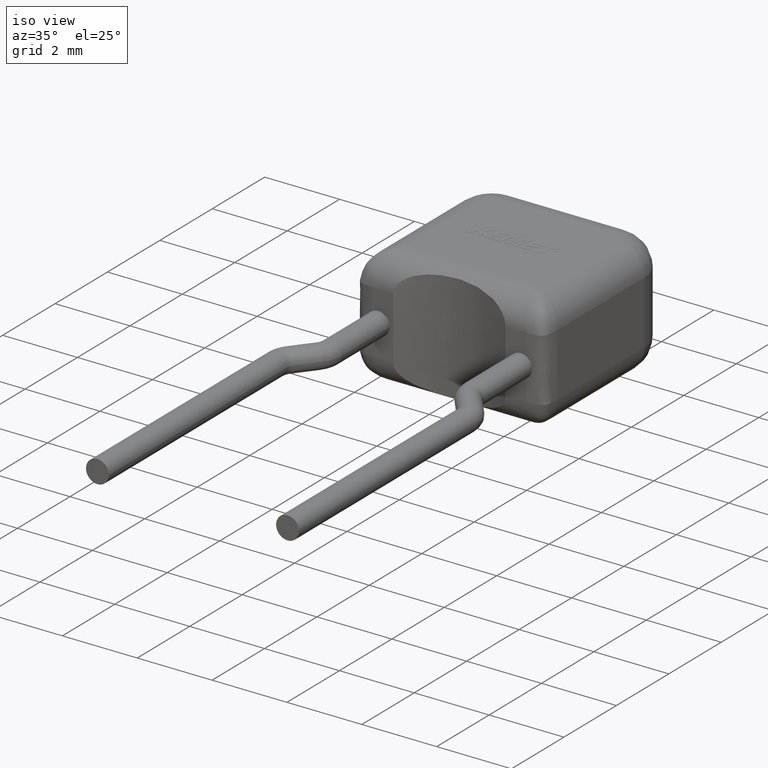
[diagram: clean part render]
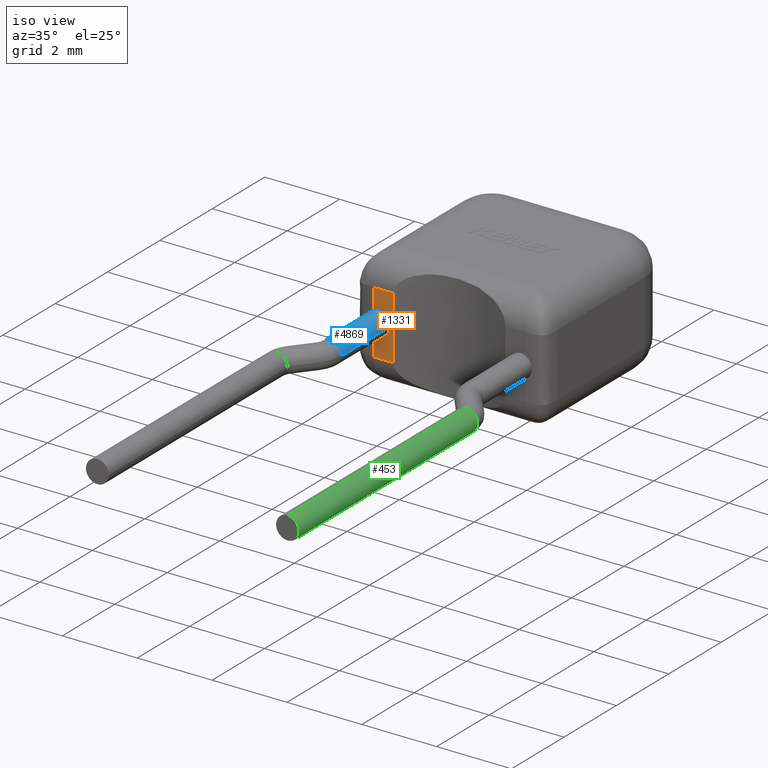
[diagram: same view with three faces highlighted in distinct colors, each labeled with its STEP entity id]
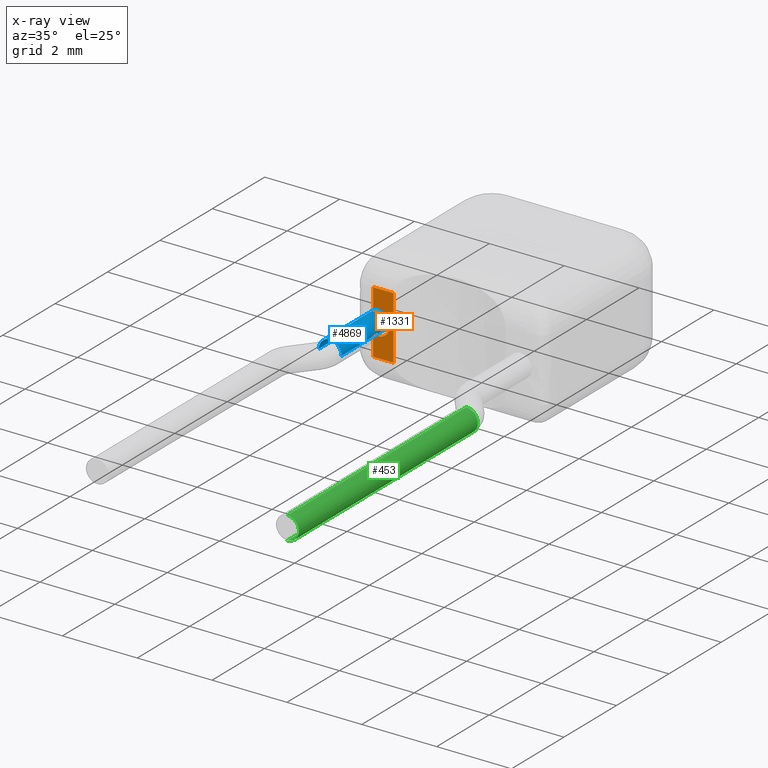
[diagram: x-ray of the same camera — body ghosted, the three highlighted faces saturated]
A machine part, iso view with three faces highlighted in distinct colors.
The next image is the same camera in x-ray (body ghosted, the three faces saturated) — at least one of them is partly hidden behind the body in this view.
Their STEP definitions:

[orange] entity #1331 — the highlighted planar face has unit normal (0, 1, 0).
#317 = DIRECTION ( 'NONE',  ( 0.0000000000000000000, 1.000000000000000000, 0.0000000000000000000 ) ) ;
#380 = CARTESIAN_POINT ( 'NONE',  ( 0.4999999999999995600, 0.0000000000000000000, 1.127669408917638700 ) ) ;
#404 = CARTESIAN_POINT ( 'NONE',  ( 0.4999999999999995600, 0.0000000000000000000, 0.9388347044588225600 ) ) ;
#445 = CARTESIAN_POINT ( 'NONE',  ( 0.4999999999999997800, 0.0000000000000000000, 1.863495886623546900 ) ) ;
#641 = CARTESIAN_POINT ( 'NONE',  ( 0.4999999999999996700, 0.0000000000000000000, 2.429999999999999700 ) ) ;
#977 = VERTEX_POINT ( 'NONE', #1622 ) ;
#1041 = EDGE_CURVE ( 'NONE', #6606, #2048, #3404, .T. ) ;
#1198 = CARTESIAN_POINT ( 'NONE',  ( 0.4999999999999995600, 0.0000000000000000000, 2.241165279087709000 ) ) ;
#1232 = CARTESIAN_POINT ( 'NONE',  ( 4.580000000000001000, 0.0000000000000000000, 0.7500000000000002200 ) ) ;
#1284 = AXIS2_PLACEMENT_3D ( 'NONE', #2543, #5117, #6704 ) ;
#1331 = ADVANCED_FACE ( 'NONE', ( #2004 ), #3501, .F. ) ;
#1372 = CARTESIAN_POINT ( 'NONE',  ( 0.4999999999999996700, 0.0000000000000000000, 2.429999999999999700 ) ) ;
#1461 = CARTESIAN_POINT ( 'NONE',  ( 1.040000000000000500, 0.0000000000000000000, 2.429999999999999700 ) ) ;
#1473 = CARTESIAN_POINT ( 'NONE',  ( 0.4999999999999996700, 0.0000000000000000000, 1.316504113376454600 ) ) ;
#1496 = EDGE_CURVE ( 'NONE', #4760, #3561, #3744, .T. ) ;
#1506 = VECTOR ( 'NONE', #6240, 1000.000000000000000 ) ;
#1622 = CARTESIAN_POINT ( 'NONE',  ( 1.040000000000000500, 0.0000000000000000000, 0.7500000000000006700 ) ) ;
#1713 = CARTESIAN_POINT ( 'NONE',  ( 0.9400000000000001700, 0.0000000000000000000, 1.590000000000000300 ) ) ;
#1718 = DIRECTION ( 'NONE',  ( -1.000000000000000000, 0.0000000000000000000, -0.0000000000000000000 ) ) ;
#1793 = AXIS2_PLACEMENT_3D ( 'NONE', #2469, #317, #6134 ) ;
#2004 = FACE_OUTER_BOUND ( 'NONE', #2209, .T. ) ;
#2048 = VERTEX_POINT ( 'NONE', #1372 ) ;
#2207 = DIRECTION ( 'NONE',  ( 0.0000000000000000000, 0.0000000000000000000, -1.000000000000000000 ) ) ;
#2209 = EDGE_LOOP ( 'NONE', ( #4960, #6271, #4066, #2647, #4368, #2940, #4632 ) ) ;
#2364 = DIRECTION ( 'NONE',  ( 1.000000000000000000, -0.0000000000000000000, 0.0000000000000000000 ) ) ;
#2469 = CARTESIAN_POINT ( 'NONE',  ( 0.0000000000000000000, 0.0000000000000000000, 3.180000000000000200 ) ) ;
#2543 = CARTESIAN_POINT ( 'NONE',  ( 0.6350000000000002300, 0.0000000000000000000, 1.590000000000000300 ) ) ;
#2578 = LINE ( 'NONE', #5215, #1506 ) ;
#2647 = ORIENTED_EDGE ( 'NONE', *, *, #6462, .F. ) ;
#2940 = ORIENTED_EDGE ( 'NONE', *, *, #1496, .T. ) ;
#3260 = CARTESIAN_POINT ( 'NONE',  ( 0.4999999999999997800, 0.0000000000000000000, 0.7500000000000065500 ) ) ;
#3311 = CARTESIAN_POINT ( 'NONE',  ( 0.6350000000000002300, 0.0000000000000000000, 1.590000000000000300 ) ) ;
#3404 = LINE ( 'NONE', #5769, #6388 ) ;
#3480 = VERTEX_POINT ( 'NONE', #445 ) ;
#3501 = PLANE ( 'NONE',  #1793 ) ;
#3561 = VERTEX_POINT ( 'NONE', #3260 ) ;
#3744 = B_SPLINE_CURVE_WITH_KNOTS ( 'NONE', 3,
 ( #1473, #380, #404, #5238 ),
 .UNSPECIFIED., .F., .F.,
 ( 4, 4 ),
 ( 0.5860049957935679100, 0.7641509433962243600 ),
 .UNSPECIFIED. ) ;
#3817 = VECTOR ( 'NONE', #2364, 1000.000000000000000 ) ;
#3917 = B_SPLINE_CURVE_WITH_KNOTS ( 'NONE', 3,
 ( #641, #1198, #4435, #6487 ),
 .UNSPECIFIED., .F., .F.,
 ( 4, 4 ),
 ( 0.2358490566037738700, 0.4139950197285764400 ),
 .UNSPECIFIED. ) ;
#4066 = ORIENTED_EDGE ( 'NONE', *, *, #5841, .T. ) ;
#4183 = CIRCLE ( 'NONE', #1284, 0.3049999999999999400 ) ;
#4368 = ORIENTED_EDGE ( 'NONE', *, *, #4683, .F. ) ;
#4435 = CARTESIAN_POINT ( 'NONE',  ( 0.4999999999999995600, 0.0000000000000000000, 2.052330558175418300 ) ) ;
#4500 = EDGE_CURVE ( 'NONE', #6606, #977, #2578, .T. ) ;
#4632 = ORIENTED_EDGE ( 'NONE', *, *, #4810, .T. ) ;
#4683 = EDGE_CURVE ( 'NONE', #4760, #5906, #4808, .T. ) ;
#4760 = VERTEX_POINT ( 'NONE', #6073 ) ;
#4808 = CIRCLE ( 'NONE', #5340, 0.3049999999999999400 ) ;
#4810 = EDGE_CURVE ( 'NONE', #3561, #977, #6647, .T. ) ;
#4841 = DIRECTION ( 'NONE',  ( 0.0000000000000000000, -1.000000000000000000, 0.0000000000000000000 ) ) ;
#4960 = ORIENTED_EDGE ( 'NONE', *, *, #4500, .F. ) ;
#5117 = DIRECTION ( 'NONE',  ( 0.0000000000000000000, -1.000000000000000000, 0.0000000000000000000 ) ) ;
#5215 = CARTESIAN_POINT ( 'NONE',  ( 1.040000000000000500, 0.0000000000000000000, 10.00000000000000000 ) ) ;
#5238 = CARTESIAN_POINT ( 'NONE',  ( 0.4999999999999997800, 0.0000000000000000000, 0.7500000000000065500 ) ) ;
#5340 = AXIS2_PLACEMENT_3D ( 'NONE', #3311, #4841, #2207 ) ;
#5769 = CARTESIAN_POINT ( 'NONE',  ( 0.0000000000000000000, 0.0000000000000000000, 2.429999999999999700 ) ) ;
#5841 = EDGE_CURVE ( 'NONE', #2048, #3480, #3917, .T. ) ;
#5906 = VERTEX_POINT ( 'NONE', #1713 ) ;
#6073 = CARTESIAN_POINT ( 'NONE',  ( 0.4999999999999996700, 0.0000000000000000000, 1.316504113376454600 ) ) ;
#6134 = DIRECTION ( 'NONE',  ( 0.0000000000000000000, -0.0000000000000000000, 1.000000000000000000 ) ) ;
#6240 = DIRECTION ( 'NONE',  ( 0.0000000000000000000, 0.0000000000000000000, -1.000000000000000000 ) ) ;
#6271 = ORIENTED_EDGE ( 'NONE', *, *, #1041, .T. ) ;
#6388 = VECTOR ( 'NONE', #1718, 1000.000000000000000 ) ;
#6462 = EDGE_CURVE ( 'NONE', #5906, #3480, #4183, .T. ) ;
#6487 = CARTESIAN_POINT ( 'NONE',  ( 0.4999999999999997800, 0.0000000000000000000, 1.863495886623546900 ) ) ;
#6606 = VERTEX_POINT ( 'NONE', #1461 ) ;
#6647 = LINE ( 'NONE', #1232, #3817 ) ;
#6704 = DIRECTION ( 'NONE',  ( 0.0000000000000000000, 0.0000000000000000000, -1.000000000000000000 ) ) ;

[blue] entity #4869 — the highlighted cylindrical surface (edge-blend (fillet) strip) has radius 0.305 mm, axis along (-0, 1, -0).
#5 = AXIS2_PLACEMENT_3D ( 'NONE', #2274, #6517, #3350 ) ;
#104 = VECTOR ( 'NONE', #1334, 1000.000000000000000 ) ;
#445 = CARTESIAN_POINT ( 'NONE',  ( 0.4999999999999997800, 0.0000000000000000000, 1.863495886623546900 ) ) ;
#563 = CARTESIAN_POINT ( 'NONE',  ( 0.9400000000000005000, -1.834921995940549200, 1.590000000000000300 ) ) ;
#680 = AXIS2_PLACEMENT_3D ( 'NONE', #2167, #2099, #6829 ) ;
#855 = CARTESIAN_POINT ( 'NONE',  ( 0.6350000000000005600, -1.834921995940549200, 1.590000000000000300 ) ) ;
#1030 = EDGE_LOOP ( 'NONE', ( #2737, #1802, #1050, #4043, #5185 ) ) ;
#1050 = ORIENTED_EDGE ( 'NONE', *, *, #6462, .T. ) ;
#1284 = AXIS2_PLACEMENT_3D ( 'NONE', #2543, #5117, #6704 ) ;
#1334 = DIRECTION ( 'NONE',  ( -1.772612963740337700E-016, 1.000000000000000000, -0.0000000000000000000 ) ) ;
#1713 = CARTESIAN_POINT ( 'NONE',  ( 0.9400000000000001700, 0.0000000000000000000, 1.590000000000000300 ) ) ;
#1802 = ORIENTED_EDGE ( 'NONE', *, *, #6195, .T. ) ;
#1969 = CIRCLE ( 'NONE', #680, 0.3049999999999999400 ) ;
#2009 = FACE_OUTER_BOUND ( 'NONE', #1030, .T. ) ;
#2099 = DIRECTION ( 'NONE',  ( 0.0000000000000000000, -1.000000000000000000, 0.0000000000000000000 ) ) ;
#2130 = VERTEX_POINT ( 'NONE', #2615 ) ;
#2167 = CARTESIAN_POINT ( 'NONE',  ( 0.6350000000000002300, 0.0000000000000000000, 1.590000000000000300 ) ) ;
#2274 = CARTESIAN_POINT ( 'NONE',  ( 0.6350000000000005600, -1.834921995940549200, 1.590000000000000300 ) ) ;
#2410 = DIRECTION ( 'NONE',  ( -1.000000000000000000, 0.0000000000000000000, 0.0000000000000000000 ) ) ;
#2543 = CARTESIAN_POINT ( 'NONE',  ( 0.6350000000000002300, 0.0000000000000000000, 1.590000000000000300 ) ) ;
#2615 = CARTESIAN_POINT ( 'NONE',  ( 0.9400000000000005000, -1.834921995940549200, 1.590000000000000300 ) ) ;
#2697 = VECTOR ( 'NONE', #3225, 1000.000000000000000 ) ;
#2737 = ORIENTED_EDGE ( 'NONE', *, *, #3632, .F. ) ;
#3149 = EDGE_CURVE ( 'NONE', #5439, #4945, #5489, .T. ) ;
#3225 = DIRECTION ( 'NONE',  ( -1.772612963740337700E-016, 1.000000000000000000, -0.0000000000000000000 ) ) ;
#3350 = DIRECTION ( 'NONE',  ( 0.0000000000000000000, 0.0000000000000000000, -1.000000000000000000 ) ) ;
#3480 = VERTEX_POINT ( 'NONE', #445 ) ;
#3632 = EDGE_CURVE ( 'NONE', #2130, #5439, #6401, .T. ) ;
#4043 = ORIENTED_EDGE ( 'NONE', *, *, #4546, .T. ) ;
#4107 = LINE ( 'NONE', #563, #2697 ) ;
#4183 = CIRCLE ( 'NONE', #1284, 0.3049999999999999400 ) ;
#4546 = EDGE_CURVE ( 'NONE', #3480, #4945, #1969, .T. ) ;
#4869 = ADVANCED_FACE ( 'NONE', ( #2009 ), #5882, .T. ) ;
#4904 = AXIS2_PLACEMENT_3D ( 'NONE', #855, #6734, #2410 ) ;
#4945 = VERTEX_POINT ( 'NONE', #5060 ) ;
#5060 = CARTESIAN_POINT ( 'NONE',  ( 0.3300000000000003500, 0.0000000000000000000, 1.590000000000000300 ) ) ;
#5117 = DIRECTION ( 'NONE',  ( 0.0000000000000000000, -1.000000000000000000, 0.0000000000000000000 ) ) ;
#5185 = ORIENTED_EDGE ( 'NONE', *, *, #3149, .F. ) ;
#5439 = VERTEX_POINT ( 'NONE', #5601 ) ;
#5489 = LINE ( 'NONE', #6666, #104 ) ;
#5601 = CARTESIAN_POINT ( 'NONE',  ( 0.3300000000000006300, -1.834921995940549200, 1.590000000000000300 ) ) ;
#5882 = CYLINDRICAL_SURFACE ( 'NONE', #4904, 0.3049999999999999400 ) ;
#5906 = VERTEX_POINT ( 'NONE', #1713 ) ;
#6195 = EDGE_CURVE ( 'NONE', #2130, #5906, #4107, .T. ) ;
#6401 = CIRCLE ( 'NONE', #5, 0.3049999999999999400 ) ;
#6462 = EDGE_CURVE ( 'NONE', #5906, #3480, #4183, .T. ) ;
#6517 = DIRECTION ( 'NONE',  ( 0.0000000000000000000, -1.000000000000000000, 0.0000000000000000000 ) ) ;
#6666 = CARTESIAN_POINT ( 'NONE',  ( 0.3300000000000006300, -1.834921995940549200, 1.590000000000000300 ) ) ;
#6704 = DIRECTION ( 'NONE',  ( 0.0000000000000000000, 0.0000000000000000000, -1.000000000000000000 ) ) ;
#6734 = DIRECTION ( 'NONE',  ( -1.772612963740337900E-016, 1.000000000000000000, -0.0000000000000000000 ) ) ;
#6829 = DIRECTION ( 'NONE',  ( 0.0000000000000000000, 0.0000000000000000000, -1.000000000000000000 ) ) ;

[green] entity #453 — the highlighted cylindrical surface (edge-blend (fillet) strip) has radius 0.305 mm, axis along (0, -1, 0).
#192 = DIRECTION ( 'NONE',  ( 0.0000000000000000000, 0.0000000000000000000, -1.000000000000000000 ) ) ;
#306 = CARTESIAN_POINT ( 'NONE',  ( 5.080000000000001800, -9.809240000000000800, 1.590000000000000300 ) ) ;
#453 = ADVANCED_FACE ( 'NONE', ( #3504 ), #3737, .T. ) ;
#844 = CIRCLE ( 'NONE', #1259, 0.3050000000000001600 ) ;
#939 = DIRECTION ( 'NONE',  ( 0.0000000000000000000, 0.0000000000000000000, -1.000000000000000000 ) ) ;
#1061 = CARTESIAN_POINT ( 'NONE',  ( 5.080000000000001800, -2.984630529679109100, 1.590000000000000300 ) ) ;
#1259 = AXIS2_PLACEMENT_3D ( 'NONE', #306, #6688, #5584 ) ;
#1490 = VERTEX_POINT ( 'NONE', #3568 ) ;
#1526 = CARTESIAN_POINT ( 'NONE',  ( 5.080000000000001800, -2.984630529679109100, 1.285000000000000100 ) ) ;
#1558 = DIRECTION ( 'NONE',  ( 0.0000000000000000000, 0.0000000000000000000, -1.000000000000000000 ) ) ;
#1583 = CARTESIAN_POINT ( 'NONE',  ( 5.080000000000001800, -2.984630529679109100, 1.895000000000000500 ) ) ;
#1898 = VERTEX_POINT ( 'NONE', #4990 ) ;
#2081 = EDGE_CURVE ( 'NONE', #3377, #1898, #6862, .T. ) ;
#2086 = CIRCLE ( 'NONE', #6821, 0.3050000000000001600 ) ;
#2136 = CIRCLE ( 'NONE', #4962, 0.3050000000000001600 ) ;
#2288 = VERTEX_POINT ( 'NONE', #5210 ) ;
#2835 = VECTOR ( 'NONE', #6874, 1000.000000000000000 ) ;
#2890 = DIRECTION ( 'NONE',  ( -7.771561172376095800E-016, -1.000000000000000000, 0.0000000000000000000 ) ) ;
#3017 = CARTESIAN_POINT ( 'NONE',  ( 5.080000000000001800, -2.984630529679109100, 1.285000000000000100 ) ) ;
#3377 = VERTEX_POINT ( 'NONE', #3017 ) ;
#3504 = FACE_OUTER_BOUND ( 'NONE', #5548, .T. ) ;
#3568 = CARTESIAN_POINT ( 'NONE',  ( 5.080000000000001800, -2.984630529679109100, 1.895000000000000500 ) ) ;
#3680 = DIRECTION ( 'NONE',  ( 0.0000000000000000000, -1.000000000000000000, 0.0000000000000000000 ) ) ;
#3737 = CYLINDRICAL_SURFACE ( 'NONE', #4258, 0.3050000000000001600 ) ;
#4177 = DIRECTION ( 'NONE',  ( 0.0000000000000000000, -1.000000000000000000, 0.0000000000000000000 ) ) ;
#4194 = EDGE_CURVE ( 'NONE', #1898, #5007, #844, .T. ) ;
#4258 = AXIS2_PLACEMENT_3D ( 'NONE', #1061, #4177, #1558 ) ;
#4516 = CARTESIAN_POINT ( 'NONE',  ( 5.080000000000001800, -9.809240000000000800, 1.895000000000000500 ) ) ;
#4532 = VECTOR ( 'NONE', #3680, 1000.000000000000000 ) ;
#4560 = EDGE_CURVE ( 'NONE', #1490, #5007, #5969, .T. ) ;
#4648 = CARTESIAN_POINT ( 'NONE',  ( 5.080000000000001800, -2.984630529679109100, 1.590000000000000300 ) ) ;
#4777 = EDGE_CURVE ( 'NONE', #3377, #2288, #2086, .T. ) ;
#4962 = AXIS2_PLACEMENT_3D ( 'NONE', #4648, #5695, #939 ) ;
#4990 = CARTESIAN_POINT ( 'NONE',  ( 5.080000000000001800, -9.809240000000000800, 1.285000000000000100 ) ) ;
#5007 = VERTEX_POINT ( 'NONE', #4516 ) ;
#5092 = ORIENTED_EDGE ( 'NONE', *, *, #4560, .T. ) ;
#5210 = CARTESIAN_POINT ( 'NONE',  ( 5.385000000000002500, -2.984630529679109100, 1.590000000000000300 ) ) ;
#5455 = ORIENTED_EDGE ( 'NONE', *, *, #2081, .F. ) ;
#5548 = EDGE_LOOP ( 'NONE', ( #6778, #6714, #5092, #6758, #5455 ) ) ;
#5584 = DIRECTION ( 'NONE',  ( 0.0000000000000000000, 0.0000000000000000000, -1.000000000000000000 ) ) ;
#5654 = EDGE_CURVE ( 'NONE', #2288, #1490, #2136, .T. ) ;
#5695 = DIRECTION ( 'NONE',  ( -7.771561172376095800E-016, -1.000000000000000000, 0.0000000000000000000 ) ) ;
#5969 = LINE ( 'NONE', #1583, #2835 ) ;
#6547 = CARTESIAN_POINT ( 'NONE',  ( 5.080000000000001800, -2.984630529679109100, 1.590000000000000300 ) ) ;
#6688 = DIRECTION ( 'NONE',  ( -7.771561172376095800E-016, -1.000000000000000000, 0.0000000000000000000 ) ) ;
#6714 = ORIENTED_EDGE ( 'NONE', *, *, #5654, .T. ) ;
#6758 = ORIENTED_EDGE ( 'NONE', *, *, #4194, .F. ) ;
#6778 = ORIENTED_EDGE ( 'NONE', *, *, #4777, .T. ) ;
#6821 = AXIS2_PLACEMENT_3D ( 'NONE', #6547, #2890, #192 ) ;
#6862 = LINE ( 'NONE', #1526, #4532 ) ;
#6874 = DIRECTION ( 'NONE',  ( 0.0000000000000000000, -1.000000000000000000, 0.0000000000000000000 ) ) ;